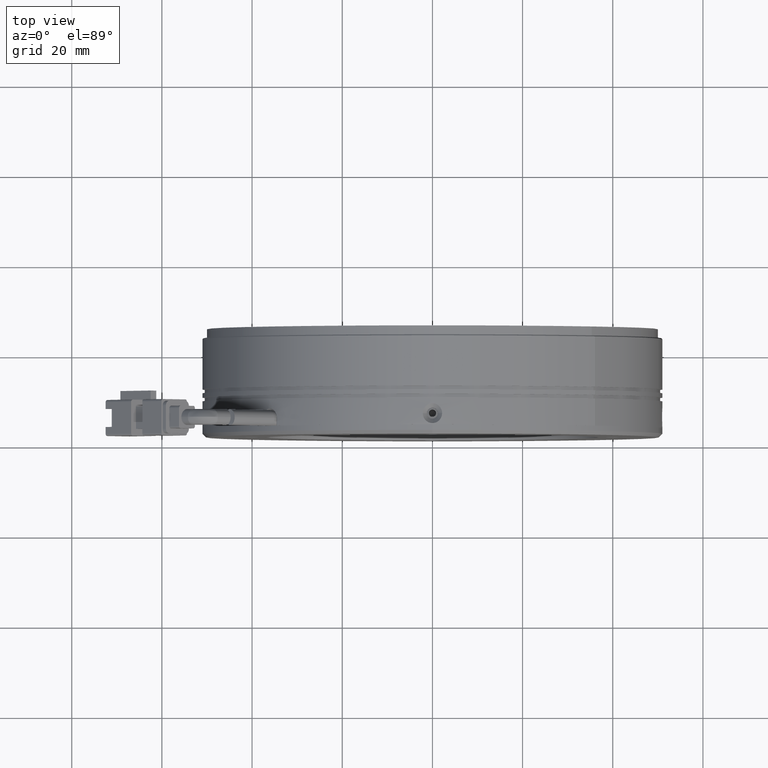
[diagram: clean part render]
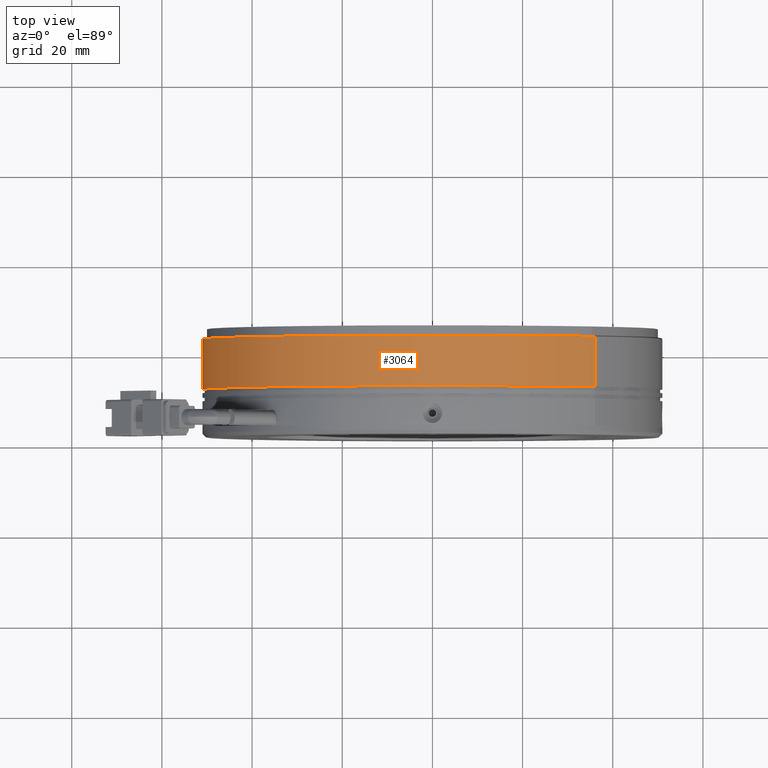
[diagram: same view with one face highlighted and labeled with its STEP entity id]
A machine part, top view. The second image highlights one B-rep face of the part: STEP entity #3064.
In plain terms, the highlighted cylindrical surface (partial cylindrical patch) has radius 51 mm, axis along (0, 1, -0).
Its self-contained STEP definition (entity closure, byte-faithful):
#540 = VECTOR ( 'NONE', #49678, 1000.000000000000000 ) ;
#3064 = ADVANCED_FACE ( 'NONE', ( #81618 ), #36094, .T. ) ;
#7525 = DIRECTION ( 'NONE',  ( -0.7071067811865460200, 0.0000000000000000000, -0.7071067811865489100 ) ) ;
#10847 = CARTESIAN_POINT ( 'NONE',  ( 36.06244584051417900, 12.00714717451851500, 36.06244584051400200 ) ) ;
#11897 = EDGE_CURVE ( 'NONE', #25527, #82398, #61775, .T. ) ;
#13423 = DIRECTION ( 'NONE',  ( 1.679007573354061900E-019, 1.000000000000000000, -1.540743955509788700E-033 ) ) ;
#13461 = CARTESIAN_POINT ( 'NONE',  ( -36.06244584051352600, 3.407147174518513600, -36.06244584051400900 ) ) ;
#14585 = DIRECTION ( 'NONE',  ( 1.679007573354061900E-019, 1.000000000000000000, -1.540743955509788700E-033 ) ) ;
#15520 = CARTESIAN_POINT ( 'NONE',  ( 3.317125359626537400E-013, 3.407147174518513600, 2.765813746307307400E-015 ) ) ;
#21274 = DIRECTION ( 'NONE',  ( -1.679007573354061900E-019, -1.000000000000000000, 1.540743955509788700E-033 ) ) ;
#22934 = EDGE_CURVE ( 'NONE', #70143, #82398, #58498, .T. ) ;
#23641 = ORIENTED_EDGE ( 'NONE', *, *, #81862, .T. ) ;
#24627 = DIRECTION ( 'NONE',  ( 1.679007573354061700E-019, 1.000000000000000000, -1.540743955509788700E-033 ) ) ;
#25527 = VERTEX_POINT ( 'NONE', #77260 ) ;
#26269 = EDGE_LOOP ( 'NONE', ( #30855, #23641, #71028, #90434 ) ) ;
#30855 = ORIENTED_EDGE ( 'NONE', *, *, #40183, .T. ) ;
#31884 = LINE ( 'NONE', #68164, #87598 ) ;
#33078 = AXIS2_PLACEMENT_3D ( 'NONE', #64815, #21274, #72134 ) ;
#35243 = AXIS2_PLACEMENT_3D ( 'NONE', #15520, #14585, #7525 ) ;
#36094 = CYLINDRICAL_SURFACE ( 'NONE', #35243, 51.00000000000002100 ) ;
#40183 = EDGE_CURVE ( 'NONE', #70143, #93385, #73433, .T. ) ;
#49678 = DIRECTION ( 'NONE',  ( 1.679007573354061700E-019, 1.000000000000000000, -1.540743955509788700E-033 ) ) ;
#56956 = CARTESIAN_POINT ( 'NONE',  ( 3.317139799091668200E-013, 12.00714717451851500, 2.765813746307307400E-015 ) ) ;
#58498 = LINE ( 'NONE', #13461, #540 ) ;
#61775 = CIRCLE ( 'NONE', #33078, 51.00000000000002100 ) ;
#64238 = DIRECTION ( 'NONE',  ( -0.7071067811865460200, 0.0000000000000000000, -0.7071067811865489100 ) ) ;
#64815 = CARTESIAN_POINT ( 'NONE',  ( 3.317158603976489400E-013, 23.20714717451852100, 2.765813746307307400E-015 ) ) ;
#68164 = CARTESIAN_POINT ( 'NONE',  ( 36.06244584051418700, 3.407147174518513600, 36.06244584051400900 ) ) ;
#69015 = CARTESIAN_POINT ( 'NONE',  ( -36.06244584051352600, 23.20714717451852100, -36.06244584051400900 ) ) ;
#70143 = VERTEX_POINT ( 'NONE', #77954 ) ;
#71028 = ORIENTED_EDGE ( 'NONE', *, *, #11897, .T. ) ;
#72134 = DIRECTION ( 'NONE',  ( -0.7071067811865460200, 0.0000000000000000000, -0.7071067811865489100 ) ) ;
#73433 = CIRCLE ( 'NONE', #84466, 51.00000000000002100 ) ;
#77260 = CARTESIAN_POINT ( 'NONE',  ( 36.06244584051417900, 23.20714717451852100, 36.06244584051400200 ) ) ;
#77954 = CARTESIAN_POINT ( 'NONE',  ( -36.06244584051352600, 12.00714717451851500, -36.06244584051400900 ) ) ;
#81618 = FACE_OUTER_BOUND ( 'NONE', #26269, .T. ) ;
#81862 = EDGE_CURVE ( 'NONE', #93385, #25527, #31884, .T. ) ;
#82398 = VERTEX_POINT ( 'NONE', #69015 ) ;
#84466 = AXIS2_PLACEMENT_3D ( 'NONE', #56956, #13423, #64238 ) ;
#87598 = VECTOR ( 'NONE', #24627, 1000.000000000000000 ) ;
#90434 = ORIENTED_EDGE ( 'NONE', *, *, #22934, .F. ) ;
#93385 = VERTEX_POINT ( 'NONE', #10847 ) ;